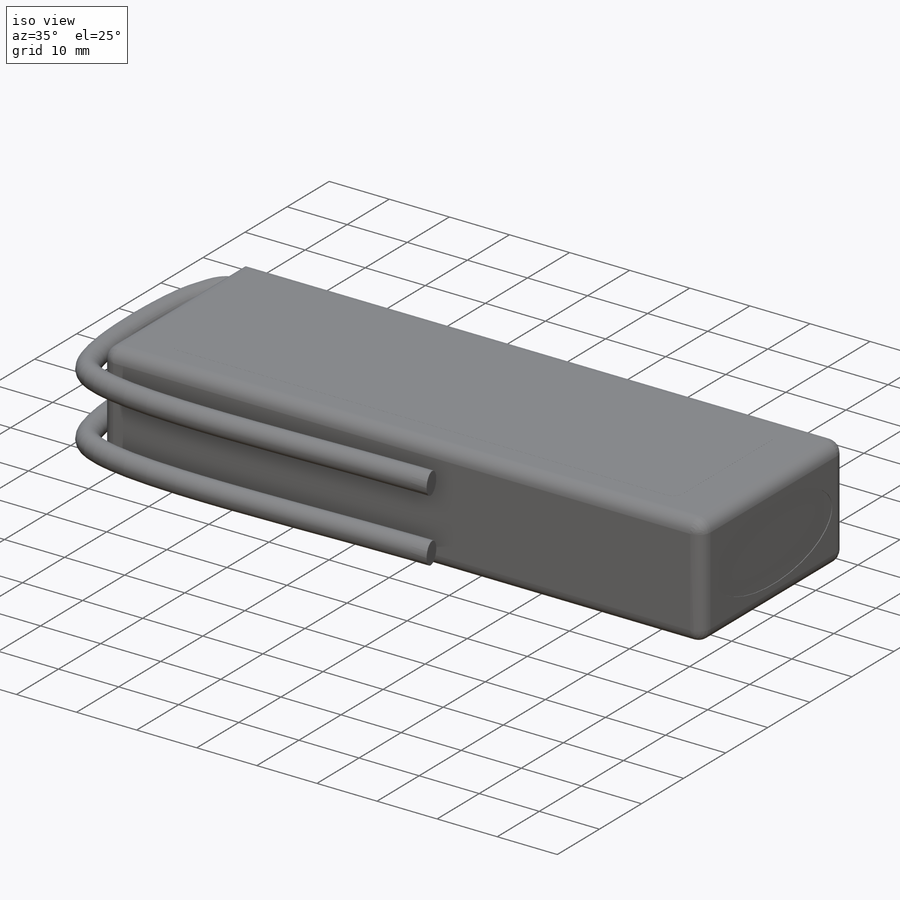
[diagram: iso view]
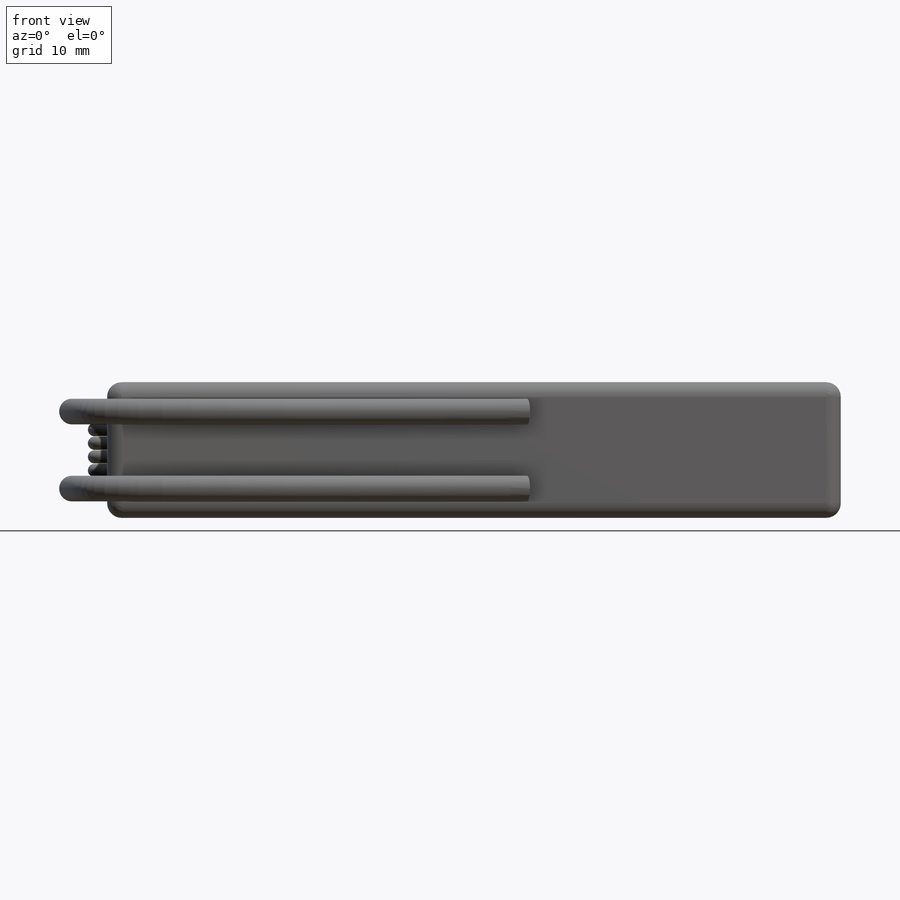
[diagram: front view]
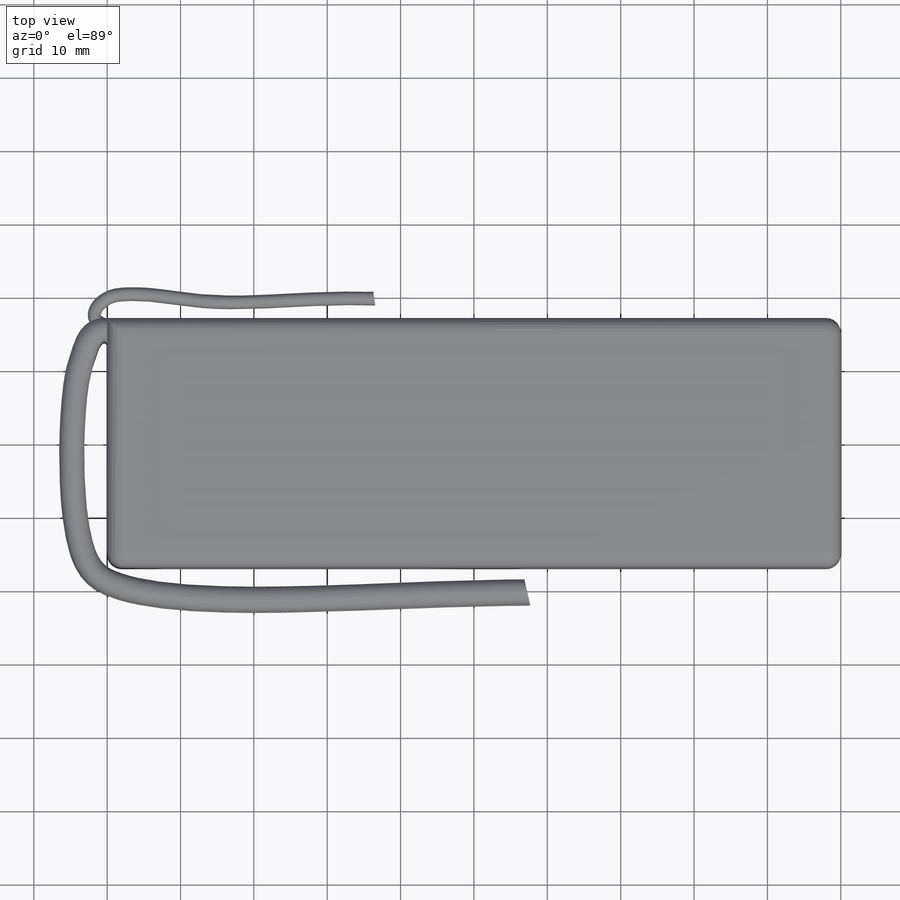
[diagram: top view]
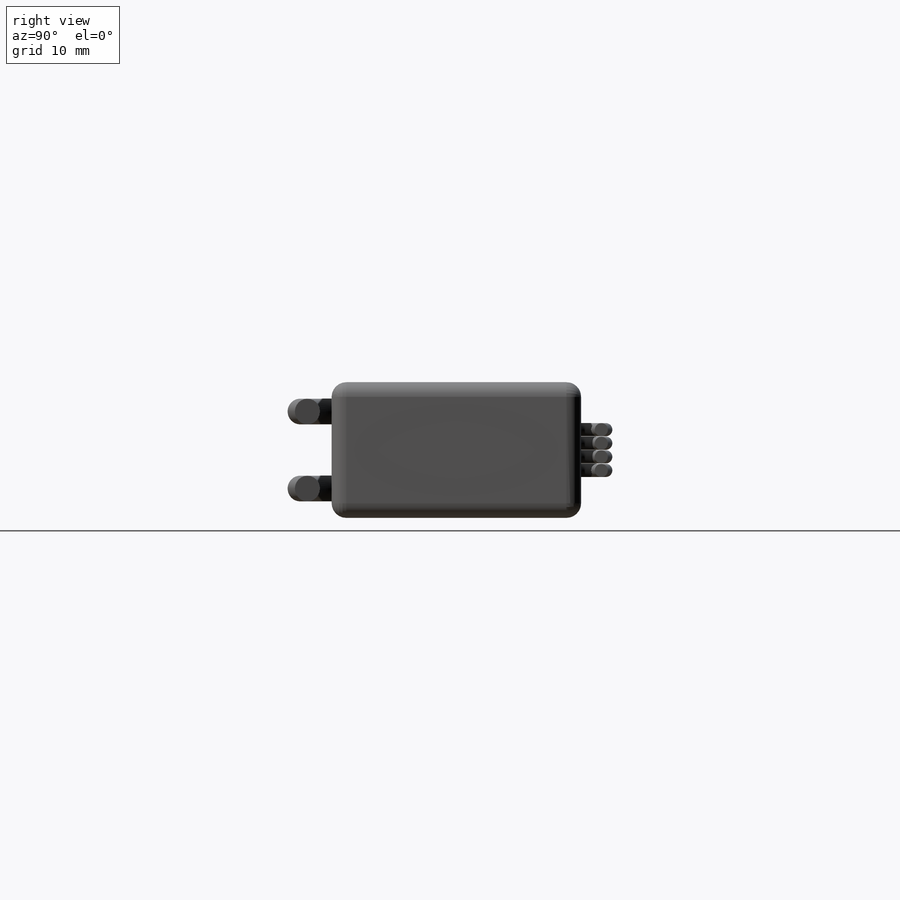
[diagram: right view]
SOLIDWORKS PART (.sldprt)
format: sldprt  version: not decoded by parser v0  size: 2,074,624 bytes
history: native  units: mm
features: sketch x9, extrude x3, fillet x2, cut_extrude x2, sweep x2, material x1 (+12 scaffold rows collapsed)
feature tree (31):
  scaffold x12  (default folders/planes/origin — collapsed)
  material  "Material <not specified>"
  sketch  "Sketch1"  dims[D1=100.0mm D2=34.0mm]
  extrude  "Boss-Extrude1"  Depth=18.5mm
  fillet  "Fillet1"  Radius=2mm
  fillet  "Fillet2"  Radius=2mm
  sketch  "Sketch3"  dims[D3=1.5mm D1=84.4mm D2=24.1mm]
  extrude  "Boss-Extrude2"  Depth=0.01mm
  sketch  "Sketch4"
  cut_extrude  "Cut-Extrude1"  Depth=0.1mm
  sketch  "Sketch5"
  cut_extrude  "Cut-Extrude2"  Depth=0.1mm
  sketch  "Sketch7"  dims[D1=2.0mm D2=2.0mm D3=1.8mm D4=1.8mm]
  sketch  "3DSketch4"
  sweep  "Sweep4"
  sketch  "Sketch10"  dims[D2=4.475mm D3=3.95mm D1=4.0]
  sketch  "3DSketch5"
  sweep  "Sweep5"
  sketch  "Sketch11"  dims[D1=0.5mm]
  extrude  "Boss-Extrude3"  Depth=0.05mm
decode coverage: 12 of 18 modeling features carry decoded parameters
note: suppression state not decoded; provenance and decode notes live in map.json
